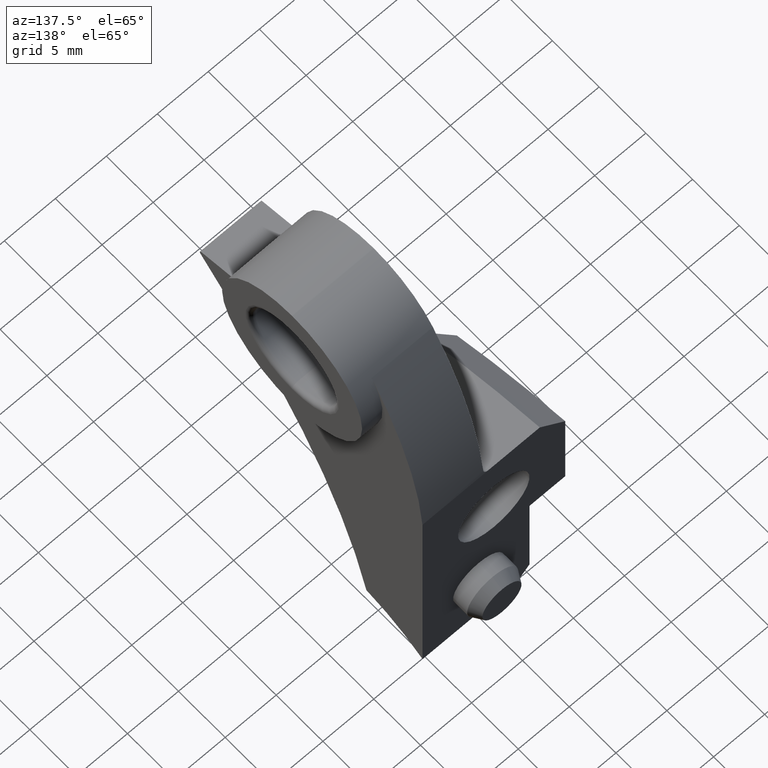
[diagram: clean part render]
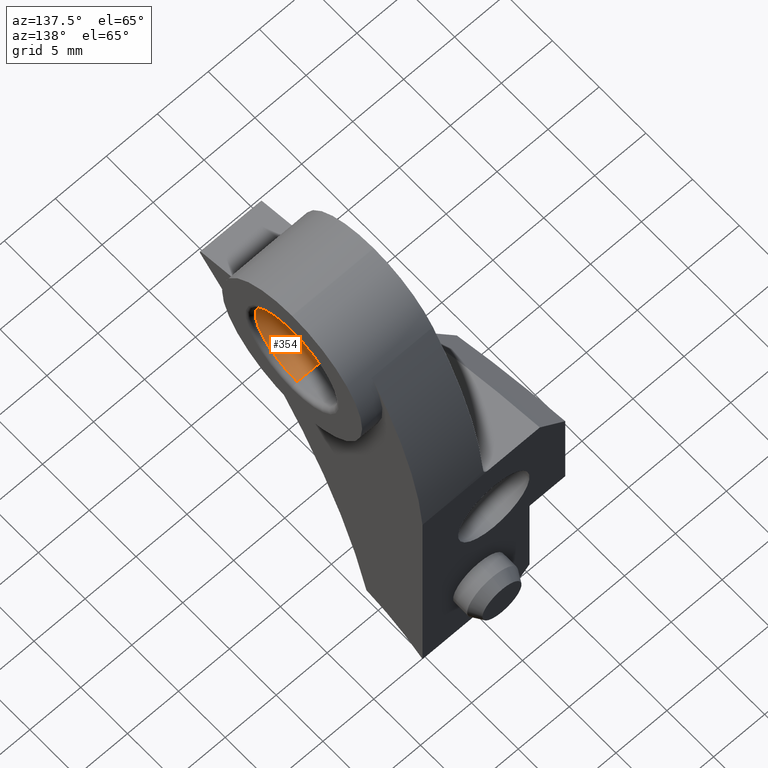
[diagram: same view with one face highlighted and labeled with its STEP entity id]
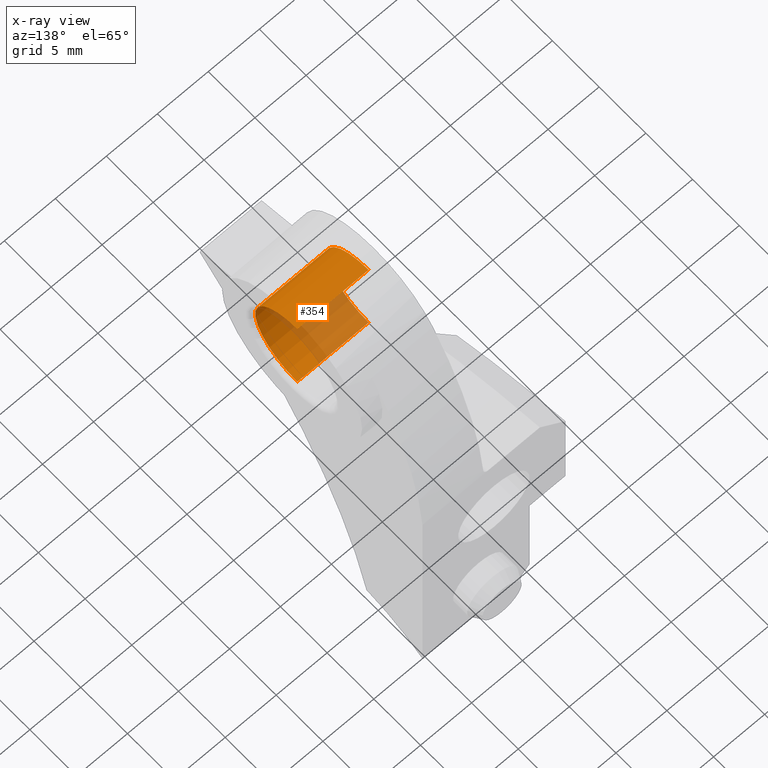
[diagram: x-ray of the same camera — body ghosted, the highlighted face saturated]
A machine part, auxiliary view. The second image highlights one B-rep face of the part: STEP entity #354.
The next image is the same camera in x-ray: the body ghosted, the highlighted face saturated — about 31% of this face is hidden behind the body in this view.
In plain terms, the highlighted cylindrical surface (partial cylindrical patch) has radius 4.5 mm, axis along (-1, -0, -0).
Its self-contained STEP definition (entity closure, byte-faithful):
#55 = ORIENTED_EDGE ( 'NONE', *, *, #779, .T. ) ;
#76 = CARTESIAN_POINT ( 'NONE',  ( 10.25000000000000200, -26.47209325125959000, 35.49067876071980300 ) ) ;
#90 = VERTEX_POINT ( 'NONE', #1325 ) ;
#198 = EDGE_CURVE ( 'NONE', #542, #90, #949, .T. ) ;
#213 = EDGE_LOOP ( 'NONE', ( #55, #745, #710, #1020 ) ) ;
#224 = FACE_OUTER_BOUND ( 'NONE', #213, .T. ) ;
#243 = VECTOR ( 'NONE', #1253, 1000.000000000000000 ) ;
#334 = CARTESIAN_POINT ( 'NONE',  ( 7.000000000000002700, -26.47209325125959000, 35.49067876071980300 ) ) ;
#340 = CARTESIAN_POINT ( 'NONE',  ( 7.000000000000002700, -26.47209325125959000, 30.99067876071980600 ) ) ;
#354 = ADVANCED_FACE ( 'NONE', ( #224 ), #1017, .F. ) ;
#387 = DIRECTION ( 'NONE',  ( 0.0000000000000000000, 0.0000000000000000000, 1.000000000000000000 ) ) ;
#398 = EDGE_CURVE ( 'NONE', #867, #542, #1163, .T. ) ;
#432 = CARTESIAN_POINT ( 'NONE',  ( 7.000000000000002700, -26.47209325125959000, 39.99067876071980300 ) ) ;
#448 = DIRECTION ( 'NONE',  ( 0.0000000000000000000, 0.0000000000000000000, -1.000000000000000000 ) ) ;
#474 = VECTOR ( 'NONE', #1114, 1000.000000000000000 ) ;
#502 = VERTEX_POINT ( 'NONE', #432 ) ;
#542 = VERTEX_POINT ( 'NONE', #555 ) ;
#555 = CARTESIAN_POINT ( 'NONE',  ( 0.0000000000000000000, -26.47209325125959000, 30.99067876071980600 ) ) ;
#578 = AXIS2_PLACEMENT_3D ( 'NONE', #334, #1092, #448 ) ;
#627 = DIRECTION ( 'NONE',  ( -1.000000000000000000, -0.0000000000000000000, -0.0000000000000000000 ) ) ;
#710 = ORIENTED_EDGE ( 'NONE', *, *, #198, .T. ) ;
#737 = DIRECTION ( 'NONE',  ( 0.0000000000000000000, 0.0000000000000000000, -1.000000000000000000 ) ) ;
#745 = ORIENTED_EDGE ( 'NONE', *, *, #398, .T. ) ;
#765 = CIRCLE ( 'NONE', #578, 4.499999999999997300 ) ;
#779 = EDGE_CURVE ( 'NONE', #502, #867, #765, .T. ) ;
#838 = CARTESIAN_POINT ( 'NONE',  ( 0.0000000000000000000, -26.47209325125959000, 35.49067876071980300 ) ) ;
#867 = VERTEX_POINT ( 'NONE', #340 ) ;
#922 = EDGE_CURVE ( 'NONE', #502, #90, #1065, .T. ) ;
#949 = CIRCLE ( 'NONE', #1158, 4.499999999999997300 ) ;
#1017 = CYLINDRICAL_SURFACE ( 'NONE', #1026, 4.499999999999997300 ) ;
#1020 = ORIENTED_EDGE ( 'NONE', *, *, #922, .F. ) ;
#1026 = AXIS2_PLACEMENT_3D ( 'NONE', #76, #1041, #387 ) ;
#1041 = DIRECTION ( 'NONE',  ( -1.000000000000000000, -0.0000000000000000000, -0.0000000000000000000 ) ) ;
#1065 = LINE ( 'NONE', #1110, #474 ) ;
#1092 = DIRECTION ( 'NONE',  ( 1.000000000000000000, 0.0000000000000000000, -6.052673018837545200E-017 ) ) ;
#1110 = CARTESIAN_POINT ( 'NONE',  ( 10.25000000000000200, -26.47209325125959000, 39.99067876071980300 ) ) ;
#1114 = DIRECTION ( 'NONE',  ( -1.000000000000000000, -0.0000000000000000000, -0.0000000000000000000 ) ) ;
#1131 = CARTESIAN_POINT ( 'NONE',  ( 10.25000000000000200, -26.47209325125959000, 30.99067876071980600 ) ) ;
#1158 = AXIS2_PLACEMENT_3D ( 'NONE', #838, #627, #737 ) ;
#1163 = LINE ( 'NONE', #1131, #243 ) ;
#1253 = DIRECTION ( 'NONE',  ( -1.000000000000000000, -0.0000000000000000000, -0.0000000000000000000 ) ) ;
#1325 = CARTESIAN_POINT ( 'NONE',  ( 0.0000000000000000000, -26.47209325125959000, 39.99067876071980300 ) ) ;